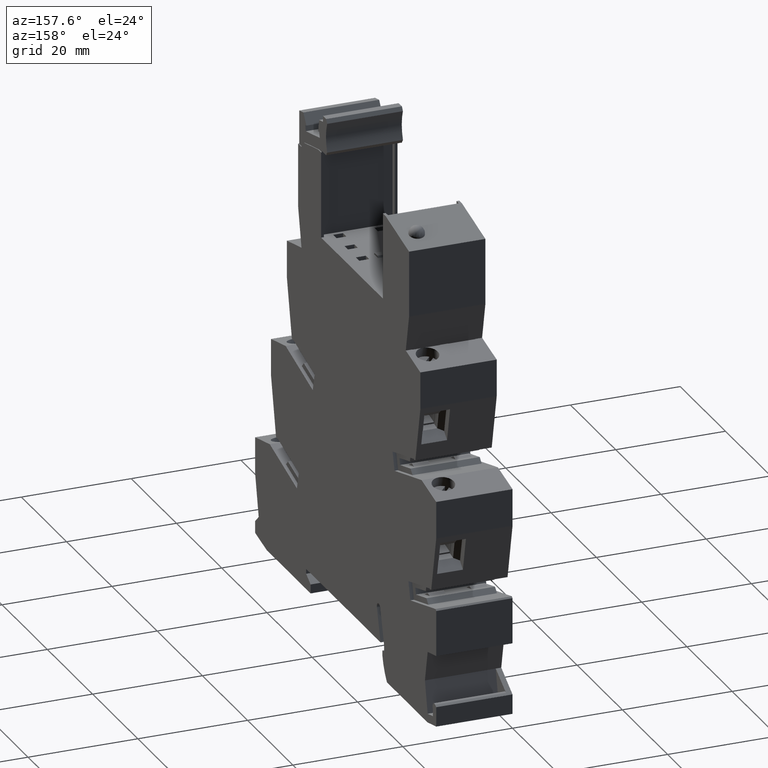
[diagram: clean part render]
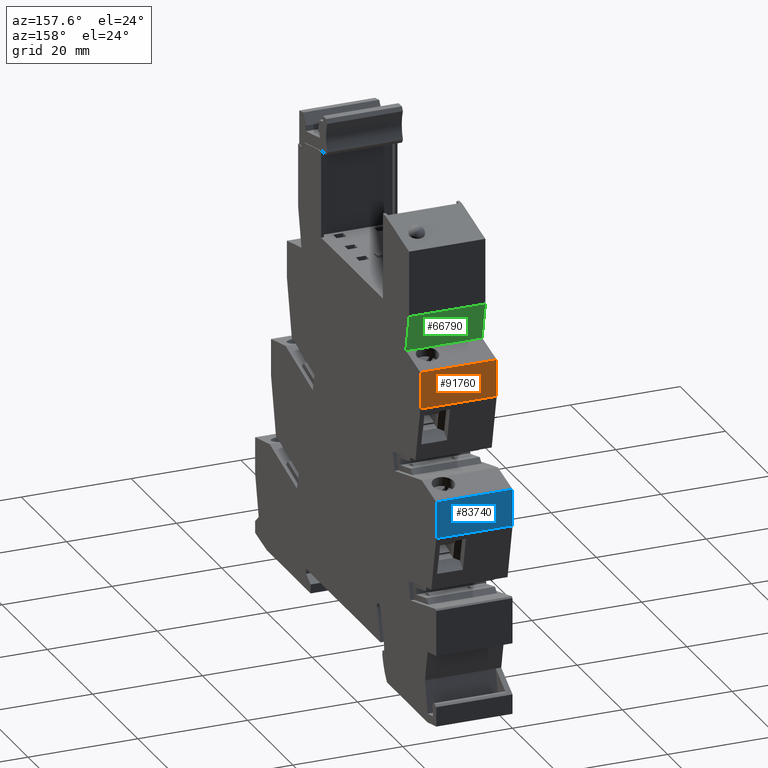
[diagram: same view with three faces highlighted in distinct colors, each labeled with its STEP entity id]
A machine part, auxiliary view with three faces highlighted in distinct colors.
Their STEP definitions:

[orange] entity #91760 — the highlighted planar face has unit normal (-0, -1, 0).
#2760=CARTESIAN_POINT('',(-31.6928398520708,54.1999999999747,
-14.7000000000046));
#2770=VERTEX_POINT('',#2760);
#2800=CARTESIAN_POINT('',(-31.6928398520707,51.1058216480327,
-14.7000000000029));
#2810=DIRECTION('',(2.63517272720816E-14,-1.,3.81404366214657E-28));
#2820=VECTOR('',#2810,1.);
#2830=LINE('',#2800,#2820);
#2840=CARTESIAN_POINT('',(-31.6928398520707,47.4663719169752,
-14.7000000000046));
#2850=VERTEX_POINT('',#2840);
#2860=EDGE_CURVE('',#2770,#2850,#2830,.T.);
#11200=CARTESIAN_POINT('',(-31.6928398520715,47.4663719169751,
-0.800000000002686));
#11210=VERTEX_POINT('',#11200);
#11240=CARTESIAN_POINT('',(-31.6928398520716,51.1058216480327,
-0.800000000002909));
#11250=DIRECTION('',(2.63517272720816E-14,-1.,3.81404366214657E-28));
#11260=VECTOR('',#11250,1.);
#11270=LINE('',#11240,#11260);
#11280=CARTESIAN_POINT('',(-31.6928398520717,54.1999999999747,
-0.800000000002909));
#11290=VERTEX_POINT('',#11280);
#11300=EDGE_CURVE('',#11290,#11210,#11270,.T.);
#91420=CARTESIAN_POINT('',(-31.6928398520715,47.466371916975,
-9.40000000000623));
#91430=DIRECTION('',(-1.89326617253043E-28,-3.32554175357221E-28,-1.));
#91440=VECTOR('',#91430,1.);
#91450=LINE('',#91420,#91440);
#91460=EDGE_CURVE('',#11210,#2850,#91450,.T.);
#91600=CARTESIAN_POINT('',(-31.6928398520708,54.1999999999747,
-14.7000000000054));
#91610=DIRECTION('',(1.,2.63517272720816E-14,6.27941947176454E-14));
#91620=DIRECTION('',(-2.63517272720816E-14,1.,-5.83401094310229E-27));
#91630=AXIS2_PLACEMENT_3D('',#91600,#91610,#91620);
#91640=PLANE('',#91630);
#91650=ORIENTED_EDGE('',*,*,#2860,.T.);
#91660=CARTESIAN_POINT('',(-31.6928398520717,54.1999999999747,
-9.40000000000623));
#91670=DIRECTION('',(-1.89326617253043E-28,-3.8994380621205E-28,-1.));
#91680=VECTOR('',#91670,1.);
#91690=LINE('',#91660,#91680);
#91700=EDGE_CURVE('',#11290,#2770,#91690,.T.);
#91710=ORIENTED_EDGE('',*,*,#91700,.T.);
#91720=ORIENTED_EDGE('',*,*,#11300,.F.);
#91730=ORIENTED_EDGE('',*,*,#91460,.F.);
#91740=EDGE_LOOP('',(#91730,#91720,#91710,#91650));
#91750=FACE_OUTER_BOUND('',#91740,.T.);
#91760=ADVANCED_FACE('',(#91750),#91640,.F.);

[blue] entity #83740 — the highlighted planar face has unit normal (-0, -1, 0).
#3400=CARTESIAN_POINT('',(-38.6928398520729,33.1999999999752,
-14.7000000000046));
#3410=VERTEX_POINT('',#3400);
#3440=CARTESIAN_POINT('',(-38.6928398520733,51.1058216480332,
-14.7000000000029));
#3450=DIRECTION('',(2.63517272777463E-14,-1.,3.81404366214657E-28));
#3460=VECTOR('',#3450,1.);
#3470=LINE('',#3440,#3460);
#3480=CARTESIAN_POINT('',(-38.6928398520727,26.4663719173216,
-14.7000000000046));
#3490=VERTEX_POINT('',#3480);
#3500=EDGE_CURVE('',#3410,#3490,#3470,.T.);
#10560=CARTESIAN_POINT('',(-38.6928398520736,26.4663719173214,
-0.800000000002643));
#10570=VERTEX_POINT('',#10560);
#10600=CARTESIAN_POINT('',(-38.6928398520742,51.1058216480332,
-0.800000000002909));
#10610=DIRECTION('',(2.63517272777463E-14,-1.,3.81404366214657E-28));
#10620=VECTOR('',#10610,1.);
#10630=LINE('',#10600,#10620);
#10640=CARTESIAN_POINT('',(-38.6928398520737,33.1999999999753,
-0.800000000002644));
#10650=VERTEX_POINT('',#10640);
#10660=EDGE_CURVE('',#10650,#10570,#10630,.T.);
#83400=CARTESIAN_POINT('',(-38.6928398520736,26.4663719173214,
-9.40000000000667));
#83410=DIRECTION('',(-1.89326617253043E-28,-3.32554175357221E-28,-1.));
#83420=VECTOR('',#83410,1.);
#83430=LINE('',#83400,#83420);
#83440=EDGE_CURVE('',#10570,#3490,#83430,.T.);
#83580=CARTESIAN_POINT('',(-38.6928398520729,33.1999999999752,
-14.7000000000058));
#83590=DIRECTION('',(1.,2.63517272777463E-14,6.27941947176454E-14));
#83600=DIRECTION('',(-2.63517272777463E-14,1.,-5.83401094310229E-27));
#83610=AXIS2_PLACEMENT_3D('',#83580,#83590,#83600);
#83620=PLANE('',#83610);
#83630=ORIENTED_EDGE('',*,*,#10660,.F.);
#83640=ORIENTED_EDGE('',*,*,#83440,.F.);
#83650=ORIENTED_EDGE('',*,*,#3500,.T.);
#83660=CARTESIAN_POINT('',(-38.6928398520738,33.1999999999753,
-9.40000000000667));
#83670=DIRECTION('',(-1.89326617253043E-28,-3.85950197879369E-28,-1.));
#83680=VECTOR('',#83670,1.);
#83690=LINE('',#83660,#83680);
#83700=EDGE_CURVE('',#10650,#3410,#83690,.T.);
#83710=ORIENTED_EDGE('',*,*,#83700,.T.);
#83720=EDGE_LOOP('',(#83710,#83650,#83640,#83630));
#83730=FACE_OUTER_BOUND('',#83720,.T.);
#83740=ADVANCED_FACE('',(#83730),#83620,.F.);

[green] entity #66790 — the highlighted planar face has unit normal (-0, -0.9781, 0.2079).
#2600=CARTESIAN_POINT('',(-26.6928400000003,62.4210975206028,
-14.7000000000046));
#2610=VERTEX_POINT('',#2600);
#2640=CARTESIAN_POINT('',(-24.2877038661778,51.1058216480323,
-14.7000000000029));
#2650=DIRECTION('',(0.207911690817847,-0.978147600733787,
3.34477023813709E-28));
#2660=VECTOR('',#2650,1.);
#2670=LINE('',#2640,#2660);
#2680=CARTESIAN_POINT('',(-25.2370655455295,55.5722171894929,
-14.7000000000047));
#2690=VERTEX_POINT('',#2680);
#2700=EDGE_CURVE('',#2610,#2690,#2670,.T.);
#11360=CARTESIAN_POINT('',(-25.2370655455303,55.5722171894929,
-0.800000000002725));
#11370=VERTEX_POINT('',#11360);
#11400=CARTESIAN_POINT('',(-24.2877038661787,51.1058216480323,
-0.800000000002909));
#11410=DIRECTION('',(0.207911690817847,-0.978147600733787,
3.34477023813709E-28));
#11420=VECTOR('',#11410,1.);
#11430=LINE('',#11400,#11420);
#11440=CARTESIAN_POINT('',(-26.6928400000011,62.4210975206027,
-0.800000000002909));
#11450=VERTEX_POINT('',#11440);
#11460=EDGE_CURVE('',#11450,#11370,#11430,.T.);
#20020=CARTESIAN_POINT('',(-25.2205080435892,55.4943202673265,
-13.5000000000025));
#20030=VERTEX_POINT('',#20020);
#20120=CARTESIAN_POINT('',(-25.2370655455295,55.5722171894929,
-13.5000000000025));
#20130=VERTEX_POINT('',#20120);
#20160=CARTESIAN_POINT('',(-13.424826135346,-1.98951966012828E-13,
-13.5000000000025));
#20170=DIRECTION('',(-0.207911690817847,0.978147600733787,
-3.89899495153423E-17));
#20180=VECTOR('',#20170,1.);
#20190=LINE('',#20160,#20180);
#20200=EDGE_CURVE('',#20030,#20130,#20190,.T.);
#57110=CARTESIAN_POINT('',(-25.2205080435901,55.4943202673273,
-2.00000000000289));
#57120=VERTEX_POINT('',#57110);
#57270=CARTESIAN_POINT('',(-25.2205080435897,55.4943202673269,
-7.00000000000322));
#57280=VERTEX_POINT('',#57270);
#57310=CARTESIAN_POINT('',(-25.2205080435902,55.4943202673275,
0.100000000000842));
#57320=DIRECTION('',(7.97113303521672E-14,-7.95888656722713E-14,-1.));
#57330=VECTOR('',#57320,1.);
#57340=LINE('',#57310,#57330);
#57350=EDGE_CURVE('',#57120,#57280,#57340,.T.);
#64660=CARTESIAN_POINT('',(-25.2205080435896,55.4943202673268,
-8.50000000000321));
#64670=VERTEX_POINT('',#64660);
#64680=EDGE_CURVE('',#64670,#20030,#57340,.T.);
#66270=CARTESIAN_POINT('',(-26.6928400000002,62.4210975206027,
-14.7000000000051));
#66280=DIRECTION('',(0.978147600733787,0.207911690817847,
6.14219909030742E-14));
#66290=DIRECTION('',(-0.207911690817847,0.978147600733787,
-1.3055647197295E-14));
#66300=AXIS2_PLACEMENT_3D('',#66270,#66280,#66290);
#66310=PLANE('',#66300);
#66320=ORIENTED_EDGE('',*,*,#20200,.F.);
#66330=CARTESIAN_POINT('',(-25.2370655455304,55.5722171894929,
0.100000000000843));
#66340=DIRECTION('',(-6.27941947176454E-14,4.30402509888584E-27,1.));
#66350=VECTOR('',#66340,1.);
#66360=LINE('',#66330,#66350);
#66370=EDGE_CURVE('',#2690,#20130,#66360,.T.);
#66380=ORIENTED_EDGE('',*,*,#66370,.T.);
#66390=ORIENTED_EDGE('',*,*,#2700,.T.);
#66400=CARTESIAN_POINT('',(-26.6928400000011,62.4210975206027,
-0.800000000002907));
#66410=DIRECTION('',(1.83015730011275E-26,2.95423459168867E-13,-1.));
#66420=VECTOR('',#66410,1.);
#66430=LINE('',#66400,#66420);
#66440=EDGE_CURVE('',#11450,#2610,#66430,.T.);
#66450=ORIENTED_EDGE('',*,*,#66440,.T.);
#66460=ORIENTED_EDGE('',*,*,#11460,.F.);
#66470=CARTESIAN_POINT('',(-25.2370655455303,55.5722171894929,
-2.00000000000289));
#66480=VERTEX_POINT('',#66470);
#66490=EDGE_CURVE('',#66480,#11370,#66360,.T.);
#66500=ORIENTED_EDGE('',*,*,#66490,.T.);
#66510=CARTESIAN_POINT('',(-13.4248261353467,-1.98951966012828E-13,
-2.0000000000029));
#66520=DIRECTION('',(-0.207911690817847,0.978147600733787,
5.81545651393589E-17));
#66530=VECTOR('',#66520,1.);
#66540=LINE('',#66510,#66530);
#66550=EDGE_CURVE('',#57120,#66480,#66540,.T.);
#66560=ORIENTED_EDGE('',*,*,#66550,.T.);
#66570=ORIENTED_EDGE('',*,*,#57350,.F.);
#66580=CARTESIAN_POINT('',(-13.4248261353464,-1.98951966012828E-13,
-7.00000000000323));
#66590=DIRECTION('',(-0.207911690817847,0.978147600733787,
4.42767773315445E-17));
#66600=VECTOR('',#66590,1.);
#66610=LINE('',#66580,#66600);
#66620=CARTESIAN_POINT('',(-25.2370655455299,55.5722171894929,
-7.00000000000322));
#66630=VERTEX_POINT('',#66620);
#66640=EDGE_CURVE('',#57280,#66630,#66610,.T.);
#66650=ORIENTED_EDGE('',*,*,#66640,.F.);
#66660=CARTESIAN_POINT('',(-25.2370655455299,55.5722171894929,
-8.50000000000322));
#66670=VERTEX_POINT('',#66660);
#66680=EDGE_CURVE('',#66670,#66630,#66360,.T.);
#66690=ORIENTED_EDGE('',*,*,#66680,.T.);
#66700=CARTESIAN_POINT('',(-13.4248261353463,-1.98951966012828E-13,
-8.50000000000322));
#66710=DIRECTION('',(0.207911690817847,-0.978147600733787,
-1.65212017159156E-17));
#66720=VECTOR('',#66710,1.);
#66730=LINE('',#66700,#66720);
#66740=EDGE_CURVE('',#66670,#64670,#66730,.T.);
#66750=ORIENTED_EDGE('',*,*,#66740,.F.);
#66760=ORIENTED_EDGE('',*,*,#64680,.F.);
#66770=EDGE_LOOP('',(#66760,#66750,#66690,#66650,#66570,#66560,#66500,
#66460,#66450,#66390,#66380,#66320));
#66780=FACE_OUTER_BOUND('',#66770,.T.);
#66790=ADVANCED_FACE('',(#66780),#66310,.F.);